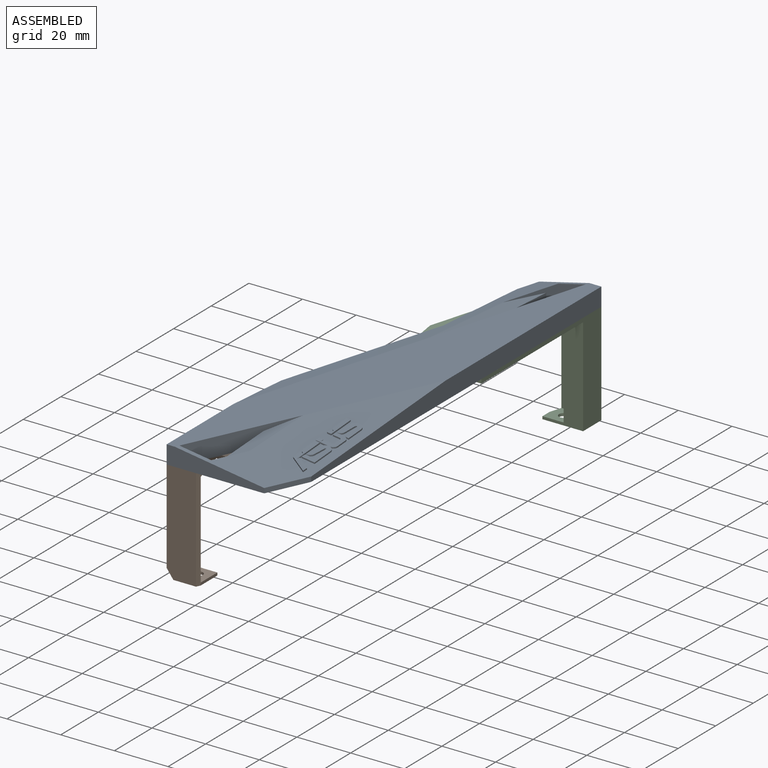
[diagram: assembled view]
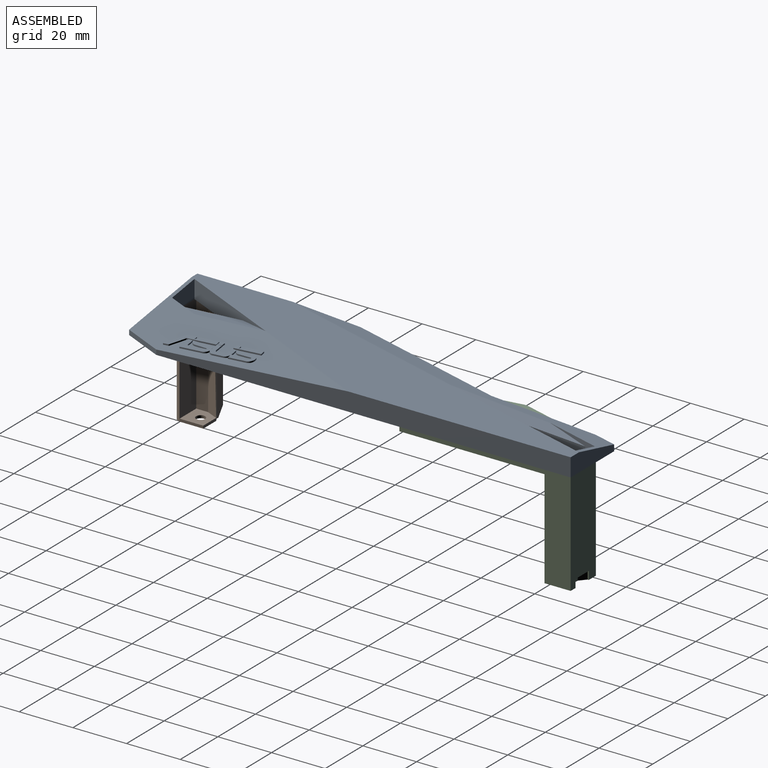
[diagram: assembled view, second angle]
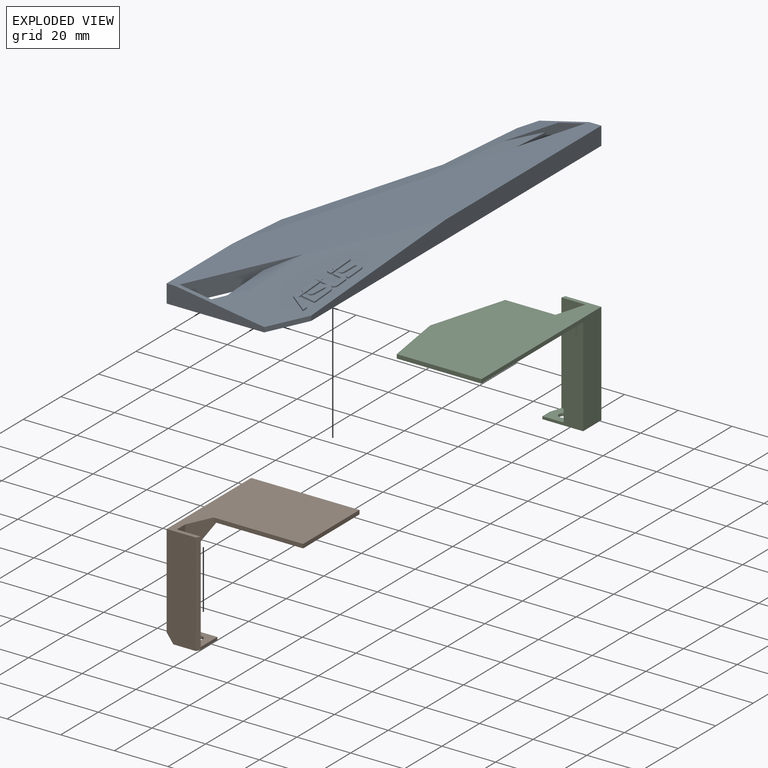
[diagram: exploded view]
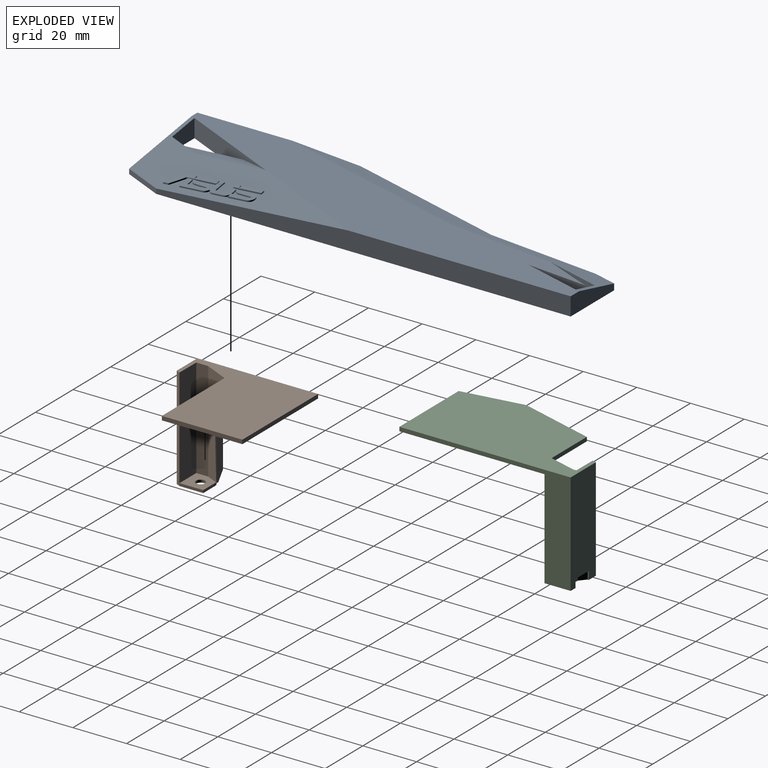
[diagram: exploded view, second angle]
ASSEMBLY  parts=3 mates=2
PART A: 165 faces, bbox 43.7x169.8x43.4 mm
  f0: plane 58.43x16.96mm, normal (0.96,-0.28,0), area 299.6mm2, adj f1,f2,f4,f5,f13
  f1: plane 35x4.8mm, normal (-1,0,0), area 129.9mm2, adj f0,f2,f3,f5
  f2: plane 53.91x5.49mm, normal (-0.15,-0.06,0.99), area 181.1mm2, adj f0,f1,f3,f6
  f3: plane 20.78x6.03mm, normal (-0.96,0.28,0), area 35.1mm2, adj f1,f2,f4,f5,f6
  f4: plane 10.16x6.8mm, normal (0,1,0), area 56.7mm2, adj f0,f3,f5,f6
  f5: plane 169.4x43.34mm, normal (0,0,-1), area 5751mm2, adj f0,f1,f3,f4,f7,f8,f9,f10
  f6: plane 134.04x38.92mm, normal (0.23,-0.07,0.97), area 838.2mm2, adj f2,f3,f4,f13,f14,f15,f17,f18
  f7: plane 39.5x18.42mm, normal (-0.91,0.42,0), area 215.8mm2, adj f5,f8,f9,f11,f13
  f8: plane 25.47x4.8mm, normal (1,0,0), area 103mm2, adj f5,f7,f10,f11
  f9: plane 11.88x6.8mm, normal (0,-1,0), area 70.2mm2, adj f5,f7,f10,f12
  f10: plane 12.27x5.72mm, normal (0.91,-0.42,0), area 18.3mm2, adj f5,f8,f9,f11,f12
  f11: plane 38.06x5.87mm, normal (0.21,0.06,0.98), area 142.5mm2, adj f7,f8,f10,f12
  f12: plane 86.88x40.7mm, normal (-0.15,0.07,0.99), area 1265.1mm2, adj f9,f10,f11,f13,f20,f21,f22,f23
  f13: plane 169.4x43.34mm, normal (0,0,1), area 2988.2mm2, adj f0,f6,f7,f12,f14,f19,f20,f22
  f14: plane 74.78x6.8mm, normal (1,0,0), area 440.3mm2, adj f5,f6,f13,f15,f16,f22
  f15: plane 74.93x17.71mm, normal (0.58,-0.17,0.79), area 310.5mm2, adj f6,f14,f16,f17
  f16: plane 61.01x17.71mm, normal (0.96,-0.28,0), area 129.8mm2, adj f5,f14,f15,f17
  f17: plane 39.02x5.02mm, normal (1,0,0), area 93.4mm2, adj f5,f6,f15,f16,f18
  f18: plane 8.5x2.47mm, normal (0.96,-0.28,0), area 20.2mm2, adj f5,f6,f17,f19
  f19: plane 23.16x6.8mm, normal (0,-1,0), area 115.2mm2, adj f5,f6,f13,f18,f20
  f20: plane 154.39x6.8mm, normal (-1,0,0), area 871mm2, adj f5,f12,f13,f19,f21
  f21: plane 15.01x7mm, normal (-0.91,0.42,0), area 29.8mm2, adj f5,f12,f20,f22
  f22: plane 36.34x6.8mm, normal (0,1,0), area 163.7mm2, adj f5,f12,f13,f14,f21
  f23: plane 1.19x0.57mm, normal (0.99,-0.12,0), area 0.6mm2, adj f12,f24,f52,f53
  f24: extruded ~0.51x0.03mm, area 0mm2, adj f12,f23,f25,f53
  f25: plane 4.94x3.13mm, normal (-0.54,-0.84,0), area 3mm2, adj f12,f24,f26,f53
  f26: extruded ~0.51x0.02mm, area 0mm2, adj f12,f25,f27,f53
  f27: plane 2.06x0.65mm, normal (-1,0,0), area 1mm2, adj f12,f26,f28,f53
  f28: cylinder r=0.02mm len=0.51mm, axis (0,0,1), area 0mm2, adj f12,f27,f29,f53
  f29: plane 6.46x4.09mm, normal (0.54,0.84,0), area 3.9mm2, adj f12,f28,f30,f53
  f30: plane 0.52x0.09mm, normal (0.6,0.8,0), area 0.1mm2, adj f12,f29,f31,f53
  f31: plane 0.52x0.08mm, normal (0.7,0.72,0), area 0.1mm2, adj f12,f30,f32,f53
  f32: plane 0.52x0.09mm, normal (0.82,0.58,0), area 0.1mm2, adj f12,f31,f33,f53
  f33: plane 0.52x0.1mm, normal (0.87,0.49,0), area 0.1mm2, adj f12,f32,f34,f53
  f34: plane 0.52x0.1mm, normal (0.94,0.34,0), area 0.1mm2, adj f12,f33,f35,f53
  f35: plane 0.52x0.11mm, normal (0.98,0.22,0), area 0.1mm2, adj f12,f34,f36,f53
  f36: plane 0.52x0.11mm, normal (1,0.07,0), area 0.1mm2, adj f12,f35,f37,f53
  f37: plane 3.11x0.72mm, normal (1,0,0), area 1.6mm2, adj f12,f36,f38,f53
  f38: cylinder r=0.02mm len=0.51mm, axis (0,0,1), area 0mm2, adj f12,f37,f39,f53
  f39: plane 1.28x0.7mm, normal (0,-1,0), area 0.6mm2, adj f12,f38,f40,f53
  f40: plane 0.51x0.11mm, normal (1,0,0), area 0.1mm2, adj f12,f39,f41,f53
  f41: extruded ~0.99x0.78mm, area 0.7mm2, adj f12,f40,f42,f53
  f42: plane 0.53x0.16mm, normal (0.86,0.52,0), area 0.1mm2, adj f12,f41,f43,f53
  f43: plane 0.53x0.17mm, normal (0.91,0.42,0), area 0.1mm2, adj f12,f42,f44,f53
  f44: plane 0.53x0.18mm, normal (0.95,0.31,0), area 0.1mm2, adj f12,f43,f45,f53
  f45: plane 0.53x0.18mm, normal (0.97,0.24,0), area 0.1mm2, adj f12,f44,f46,f53
  f46: plane 0.52x0.19mm, normal (0.99,0.15,0), area 0.1mm2, adj f12,f45,f47,f53
  f47: plane 0.52x0.18mm, normal (1,0.04,0), area 0.1mm2, adj f12,f46,f48,f53
  f48: plane 6.39x0.95mm, normal (1,0,0), area 3.2mm2, adj f12,f47,f49,f53
  f49: cylinder r=0.02mm len=0.51mm, axis (0,0,1), area 0mm2, adj f12,f48,f50,f53
  f50: plane 1.68x0.76mm, normal (0,-1,0), area 0.8mm2, adj f12,f49,f51,f53
  f51: extruded ~0.51x0.03mm, area 0mm2, adj f12,f50,f52,f53
  f52: plane 12.18x1.36mm, normal (-1,0,0), area 6.2mm2, adj f12,f23,f51,f53
  f53: plane 16.24x6.86mm, normal (-0.15,0.07,0.99), area 31.9mm2, adj f23,f24,f25,f26,f27,f28,f29,f30
  f54: plane 10.4x1.57mm, normal (-0.15,0.07,0.99), area 15.7mm2, adj f55,f56,f57,f58,f59,f60,f61,f62
  f55: extruded ~0.51x0.03mm, area 0mm2, adj f12,f54,f56,f72
  f56: plane 1.31x0.7mm, normal (0,-1,0), area 0.7mm2, adj f12,f54,f55,f57
  f57: extruded ~1.01x0.85mm, area 0.7mm2, adj f12,f54,f56,f58
  f58: plane 0.53x0.16mm, normal (0.86,0.5,0), area 0.1mm2, adj f12,f54,f57,f59
  f59: plane 0.53x0.17mm, normal (0.91,0.41,0), area 0.1mm2, adj f12,f54,f58,f60
  f60: plane 0.53x0.18mm, normal (0.95,0.31,0), area 0.1mm2, adj f12,f54,f59,f61
  f61: plane 0.53x0.18mm, normal (0.96,0.27,0), area 0.1mm2, adj f12,f54,f60,f62
  f62: plane 0.52x0.18mm, normal (0.99,0.15,0), area 0.1mm2, adj f12,f54,f61,f63
  f63: plane 0.52x0.18mm, normal (1,0.07,0), area 0.1mm2, adj f12,f54,f62,f64
  f64: plane 6.7x0.98mm, normal (1,0,0), area 3.4mm2, adj f12,f54,f63,f65
  f65: extruded ~0.51x0.02mm, area 0mm2, adj f12,f54,f64,f66
  f66: plane 1.52x0.74mm, normal (0,-1,0), area 0.8mm2, adj f12,f54,f65,f67
  f67: cylinder r=0.02mm len=0.51mm, axis (0,0,1), area 0mm2, adj f12,f54,f66,f68
  f68: plane 10.34x1.23mm, normal (-1,0,0), area 5.2mm2, adj f12,f54,f67,f69
  f69: extruded ~0.51x0.02mm, area 0mm2, adj f12,f54,f68,f70
  f70: plane 1.52x0.73mm, normal (0,1,0), area 0.8mm2, adj f12,f54,f69,f71
  f71: extruded ~0.51x0.02mm, area 0mm2, adj f12,f54,f70,f72
  f72: plane 1.72x0.63mm, normal (1,0,0), area 0.9mm2, adj f12,f54,f55,f71
  f73: plane 3.12x0.73mm, normal (1,0,0), area 1.6mm2, adj f12,f74,f162,f163
  f74: extruded ~0.63x0.56mm, area 0.4mm2, adj f12,f73,f75,f163
  f75: plane 2.58x0.89mm, normal (0,1,0), area 1.3mm2, adj f12,f74,f76,f163
  f76: cylinder r=0.05mm len=0.51mm, axis (0,0,-1), area 0mm2, adj f12,f75,f77,f163
  f77: plane 1.72x0.61mm, normal (1,-0.08,0), area 0.9mm2, adj f12,f76,f78,f163
  f78: cylinder r=0.03mm len=0.51mm, axis (0,0,-1), area 0mm2, adj f12,f77,f79,f163
  f79: plane 2.84x0.93mm, normal (0,-1,0), area 1.4mm2, adj f12,f78,f80,f163
  f80: plane 6.8x0.98mm, normal (1,0,0), area 3.4mm2, adj f12,f79,f81,f163
  f81: extruded ~0.6x0.6mm, area 0.5mm2, adj f12,f80,f82,f163
  f82: plane 5.07x0.8mm, normal (-1,0.08,0), area 2.6mm2, adj f12,f81,f83,f163
  f83: plane 0.51x0.18mm, normal (-0.98,0.18,0), area 0.1mm2, adj f12,f82,f84,f163
  f84: plane 0.51x0.17mm, normal (-0.97,0.26,0), area 0.1mm2, adj f12,f83,f85,f163
  f85: plane 0.51x0.17mm, normal (-0.94,0.34,0), area 0.1mm2, adj f12,f84,f86,f163
  f86: plane 0.51x0.16mm, normal (-0.9,0.43,0), area 0.1mm2, adj f12,f85,f87,f163
  f87: plane 0.51x0.15mm, normal (-0.86,0.51,0), area 0.1mm2, adj f12,f86,f88,f163
  f88: plane 0.51x0.15mm, normal (-0.81,0.58,0), area 0.1mm2, adj f12,f87,f89,f163
  f89: plane 0.52x0.13mm, normal (-0.74,0.67,0), area 0.1mm2, adj f12,f88,f90,f163
  f90: extruded ~1.31x0.66mm, area 0.7mm2, adj f12,f89,f91,f163
  f91: plane 6.78x0.9mm, normal (1,-0.08,0), area 3.4mm2, adj f12,f90,f92,f163
  f92: plane 0.52x0.18mm, normal (0.99,-0.12,0), area 0.1mm2, adj f12,f91,f93,f163
  f93: plane 0.51x0.17mm, normal (0.98,-0.21,0), area 0.1mm2, adj f12,f92,f94,f163
  f94: plane 0.51x0.17mm, normal (0.96,-0.29,0), area 0.1mm2, adj f12,f93,f95,f163
  f95: plane 0.51x0.16mm, normal (0.93,-0.37,0), area 0.1mm2, adj f12,f94,f96,f163
  f96: extruded ~2.01x1.17mm, area 1.3mm2, adj f12,f95,f97,f163
  f97: extruded ~1.37x0.76mm, area 0.8mm2, adj f12,f96,f98,f163
  f98: extruded ~0.78x0.62mm, area 0.4mm2, adj f12,f97,f99,f163
  f99: plane 0.53x0.17mm, normal (-0.97,-0.24,0), area 0.1mm2, adj f12,f98,f100,f163
  f100: plane 0.52x0.18mm, normal (-0.99,-0.13,0), area 0.1mm2, adj f12,f99,f101,f163
  f101: plane 0.52x0.17mm, normal (-1,-0.03,0), area 0.1mm2, adj f12,f100,f102,f163
  f102: plane 6.79x0.98mm, normal (-1,0,0), area 3.4mm2, adj f12,f101,f103,f163
  f103: cylinder r=0.07mm len=0.51mm, axis (0,0,-1), area 0mm2, adj f12,f102,f104,f163
  f104: plane 1.24x0.69mm, normal (0,1,0), area 0.6mm2, adj f12,f103,f105,f163
  f105: extruded ~0.92x0.69mm, area 0.6mm2, adj f12,f104,f106,f163
  f106: plane 0.53x0.14mm, normal (-0.84,-0.54,0), area 0.1mm2, adj f12,f105,f107,f163
  f107: plane 0.53x0.14mm, normal (-0.88,-0.47,0), area 0.1mm2, adj f12,f106,f108,f163
  f108: plane 0.53x0.16mm, normal (-0.92,-0.38,0), area 0.1mm2, adj f12,f107,f109,f163
  f109: plane 0.53x0.15mm, normal (-0.94,-0.33,0), area 0.1mm2, adj f12,f108,f110,f163
  f110: plane 0.52x0.17mm, normal (-0.98,-0.22,0), area 0.1mm2, adj f12,f109,f111,f163
  f111: plane 0.52x0.16mm, normal (-0.99,-0.14,0), area 0.1mm2, adj f12,f110,f112,f163
  f112: plane 0.52x0.17mm, normal (-1,-0.04,0), area 0.1mm2, adj f12,f111,f113,f163
  f113: plane 4.06x0.79mm, normal (-1,0,0), area 2.1mm2, adj f12,f112,f114,f163
  f114: extruded ~1.83x1.52mm, area 1.3mm2, adj f12,f113,f115,f163
  f115: extruded ~1.2x0.81mm, area 0.7mm2, adj f12,f114,f116,f163
  f116: plane 0.53x0.16mm, normal (-0.85,-0.52,0), area 0.1mm2, adj f12,f115,f117,f163
  f117: plane 0.53x0.16mm, normal (-0.91,-0.42,0), area 0.1mm2, adj f12,f116,f118,f163
  f118: plane 0.53x0.17mm, normal (-0.93,-0.37,0), area 0.1mm2, adj f12,f117,f119,f163
  f119: plane 0.53x0.18mm, normal (-0.97,-0.25,0), area 0.1mm2, adj f12,f118,f120,f163
  f120: plane 0.52x0.18mm, normal (-0.98,-0.18,0), area 0.1mm2, adj f12,f119,f121,f163
  f121: plane 0.52x0.18mm, normal (-1,-0.05,0), area 0.1mm2, adj f12,f120,f122,f163
  f122: plane 0.52x0.18mm, normal (-1,0.02,0), area 0.1mm2, adj f12,f121,f123,f163
  f123: plane 8.42x1.1mm, normal (-1,0,0), area 4.3mm2, adj f12,f122,f124,f163
  f124: cylinder r=0.04mm len=0.51mm, axis (0,0,-1), area 0mm2, adj f12,f123,f125,f163
  f125: plane 4.81x1.23mm, normal (0,1,0), area 2.4mm2, adj f12,f124,f126,f163
  f126: extruded ~0.51x0.02mm, area 0mm2, adj f12,f125,f127,f163
  f127: plane 1.75x0.6mm, normal (0.99,-0.11,0), area 0.9mm2, adj f12,f126,f128,f163
  f128: cylinder r=0.03mm len=0.51mm, axis (0,0,-1), area 0mm2, adj f12,f127,f129,f163
  f129: plane 2.91x0.94mm, normal (0,-1,0), area 1.5mm2, adj f12,f128,f130,f163
  f130: plane 6.78x0.98mm, normal (1,0,0), area 3.4mm2, adj f12,f129,f131,f163
  f131: extruded ~0.56x0.22mm, area 0.2mm2, adj f12,f130,f132,f163
  f132: extruded ~0.53x0.21mm, area 0.2mm2, adj f12,f131,f133,f163
  f133: plane 4.94x0.81mm, normal (-0.99,0.12,0), area 2.5mm2, adj f12,f132,f134,f163
  f134: plane 0.51x0.19mm, normal (-0.97,0.23,0), area 0.1mm2, adj f12,f133,f135,f163
  f135: plane 0.51x0.19mm, normal (-0.96,0.29,0), area 0.1mm2, adj f12,f134,f136,f163
  f136: plane 0.51x0.18mm, normal (-0.9,0.43,0), area 0.1mm2, adj f12,f135,f137,f163
  f137: plane 0.51x0.17mm, normal (-0.88,0.48,0), area 0.1mm2, adj f12,f136,f138,f163
  f138: plane 0.51x0.16mm, normal (-0.82,0.57,0), area 0.1mm2, adj f12,f137,f139,f163
  f139: plane 0.51x0.15mm, normal (-0.78,0.63,0), area 0.1mm2, adj f12,f138,f140,f163
  f140: plane 0.52x0.14mm, normal (-0.71,0.71,0), area 0.1mm2, adj f12,f139,f141,f163
  f141: extruded ~1.25x0.66mm, area 0.7mm2, adj f12,f140,f142,f163
  f142: plane 6.65x0.86mm, normal (0.99,-0.12,0), area 3.4mm2, adj f12,f141,f143,f163
  f143: plane 0.52x0.18mm, normal (0.99,-0.13,0), area 0.1mm2, adj f12,f142,f144,f163
  f144: plane 0.51x0.17mm, normal (0.98,-0.22,0), area 0.1mm2, adj f12,f143,f145,f163
  f145: plane 0.51x0.17mm, normal (0.95,-0.32,0), area 0.1mm2, adj f12,f144,f146,f163
  f146: plane 0.51x0.17mm, normal (0.93,-0.38,0), area 0.1mm2, adj f12,f145,f147,f163
  f147: plane 0.51x0.16mm, normal (0.9,-0.44,0), area 0.1mm2, adj f12,f146,f148,f163
  f148: plane 0.51x0.14mm, normal (0.83,-0.56,0), area 0.1mm2, adj f12,f147,f149,f163
  f149: plane 0.51x0.15mm, normal (0.8,-0.6,0), area 0.1mm2, adj f12,f148,f150,f163
  f150: extruded ~0.94x0.63mm, area 0.6mm2, adj f12,f149,f151,f163
  f151: plane 4.38x1.16mm, normal (0,1,0), area 2.2mm2, adj f12,f150,f152,f163
  f152: cylinder r=0.03mm len=0.51mm, axis (0,0,-1), area 0mm2, adj f12,f151,f153,f163
  f153: plane 1.72x0.63mm, normal (1,0,0), area 0.9mm2, adj f12,f152,f154,f163
  f154: bspline ~43.07x0.03mm, area 0mm2, adj f12,f153,f155,f163
  f155: plane 1.52x0.74mm, normal (0,-1,0), area 0.8mm2, adj f12,f154,f163,f164
  f156: extruded ~0.51x0.02mm, area 0mm2, adj f12,f157,f163,f164
  f157: plane 1.46x0.61mm, normal (-1,0,0), area 0.7mm2, adj f12,f156,f158,f163
  f158: plane 0.51x0.05mm, normal (0,-1,0), area 0mm2, adj f12,f157,f159,f163
  f159: plane 1.46x0.59mm, normal (1,-0.08,0), area 0.7mm2, adj f12,f158,f160,f163
  f160: cylinder r=0.03mm len=0.51mm, axis (0,0,-1), area 0mm2, adj f12,f159,f161,f163
  f161: plane 2.95x0.95mm, normal (0,-1,0), area 1.5mm2, adj f12,f160,f162,f163
  f162: extruded ~0.57x0.56mm, area 0.4mm2, adj f12,f73,f161,f163
  f163: plane 27.29x7.22mm, normal (-0.15,0.07,0.99), area 91.7mm2, adj f73,f74,f75,f76,f77,f78,f79,f80
  f164: cylinder r=0.07mm len=0.51mm, axis (0,0.01,-1), area 0mm2, adj f155,f156
PART B: 24 faces, bbox 38.2x45x40.3 mm
  f0: plane 33.35x1.5mm, normal (0,1,0), area 50mm2, adj f1,f8,f13,f20
  f1: plane 7.5x6mm, normal (0,0.42,0.91), area 27.6mm2, adj f0,f3,f13,f19,f20
  f2: plane 4.82x0.8mm, normal (-1,0,0), area 3.7mm2, adj f3,f18,f19,f21,f23
  f3: plane 37.2x4.42mm, normal (0,0.42,0.91), area 168.5mm2, adj f1,f2,f12,f16,f20,f21
  f4: plane 10.35x9.15mm, normal (-1,0,0), area 83.8mm2, adj f5,f6,f7,f9,f10,f11,f17,f22
  f5: plane 6.83x1mm, normal (0,-1,0), area 6.8mm2, adj f4,f9,f12,f22
  f6: plane 9.55x3.38mm, normal (-0.6,0,-0.8), area 40.1mm2, adj f4,f17,f18,f23
  f7: plane 38.2x1.5mm, normal (0,0.42,0.91), area 63.2mm2, adj f4,f9,f15,f17,f20
  f8: plane 29.99x1.5mm, normal (0,0,1), area 45mm2, adj f0,f13,f14,f20
  f9: plane 8.85x1mm, normal (0,0,1), area 8.8mm2, adj f4,f5,f7,f12
  f10: cylinder r=1.7mm len=3.4mm, axis (1,0,0), area 5.3mm2, adj f4,f11,f12
  f11: cylinder r=1.7mm len=3.4mm, axis (1,0,0), area 5.3mm2, adj f4,f10,f12
  f12: plane 8.89x8.85mm, normal (1,0,0), area 65.1mm2, adj f3,f5,f9,f10,f11,f15,f16
  f13: plane 40.34x29.99mm, normal (-1,0,0), area 1199.9mm2, adj f0,f1,f8,f14,f18,f19
  f14: plane 40.34x1.5mm, normal (0,-1,0), area 60.5mm2, adj f8,f13,f18,f20
  f15: plane 37.2x8.89mm, normal (0,-1,0), area 330.9mm2, adj f7,f12,f16,f20
  f16: plane 37.2x4.43mm, normal (0,0,1), area 164.7mm2, adj f3,f12,f15,f20
  f17: plane 38.2x10.95mm, normal (0,1,0), area 414mm2, adj f4,f6,f7,f18,f20
  f18: plane 45x34.83mm, normal (0,0,-1), area 408.6mm2, adj f2,f6,f13,f14,f17,f19,f20,f23
  f19: plane 7.61x6mm, normal (-0.71,-0.71,0), area 52.7mm2, adj f1,f2,f13,f18
  f20: plane 45x40.34mm, normal (1,0,0), area 1283mm2, adj f0,f1,f3,f7,f8,f14,f15,f16
  f21: plane 29.7x1.48mm, normal (0.03,-1,0), area 16.5mm2, adj f2,f3,f22
  f22: plane 30.7x1.48mm, normal (0,-0.88,-0.47), area 26.7mm2, adj f4,f5,f21,f23
  f23: plane 30.7x3.33mm, normal (0,-1,0), area 98.1mm2, adj f2,f4,f6,f18,f22
PART C: 26 faces, bbox 35.1x38.2x63.8 mm
  f0: plane 18.74x1.5mm, normal (0,0,-1), area 28.1mm2, adj f1,f4,f24,f25
  f1: plane 3.06x1.5mm, normal (0.96,0,-0.28), area 4.8mm2, adj f0,f2,f4,f24
  f2: plane 37.2x8.22mm, normal (0.96,0,-0.28), area 260.4mm2, adj f1,f11,f14,f22,f24
  f3: plane 22.73x3.52mm, normal (0.99,0,0.15), area 34.5mm2, adj f4,f23,f24,f25
  f4: plane 54.09x35.08mm, normal (0,1,0), area 1657.6mm2, adj f0,f1,f3,f11,f20,f23,f25
  f5: plane 2.33x2.01mm, normal (0,1,0), area 2.3mm2, adj f9,f15
  f6: plane 3.05x2.33mm, normal (-0.65,0,-0.76), area 9.4mm2, adj f7,f10,f15,f16
  f7: plane 3.05x2.45mm, normal (0,0,-1), area 7.5mm2, adj f6,f9,f10,f15
  f8: plane 3.05x0.48mm, normal (1,0,0), area 1.5mm2, adj f9,f10,f13,f15
  f9: plane 3.05x2.33mm, normal (0.65,0,-0.76), area 9.4mm2, adj f5,f7,f8,f10
  f10: plane 7.11x2.48mm, normal (0,1,0), area 13mm2, adj f6,f7,f8,f9,f13,f16
  f11: plane 36.7x15.16mm, normal (0,0,1), area 273.8mm2, adj f2,f4,f14,f15,f17,f20
  f12: plane 37.2x9mm, normal (0,0,1), area 254.2mm2, adj f14,f21,f22,f24
  f13: plane 38.2x13.42mm, normal (0,0,-1), area 491.1mm2, adj f8,f10,f15,f16,f20,f21,f24
  f14: plane 9.43x8.22mm, normal (0,-1,0), area 56.4mm2, adj f2,f11,f12,f17,f18,f19,f21,f22
  f15: plane 15.16x9.72mm, normal (0,1,0), area 117.7mm2, adj f5,f6,f7,f8,f11,f13,f16,f17
  f16: plane 3.05x0.48mm, normal (-1,0,0), area 1.5mm2, adj f6,f10,f13,f15
  f17: plane 3.74x1mm, normal (1,0,0), area 3.7mm2, adj f11,f14,f15,f21
  f18: cylinder r=1.7mm len=3.4mm, axis (0,-1,0), area 5.3mm2, adj f14,f15,f19
  f19: cylinder r=1.7mm len=3.4mm, axis (0,-1,0), area 5.3mm2, adj f14,f15,f18
  f20: plane 63.81x38.2mm, normal (-1,0,0), area 452.2mm2, adj f4,f11,f13,f15,f23,f24
  f21: plane 38.2x5.98mm, normal (0.96,0,-0.28), area 64.3mm2, adj f12,f13,f14,f15,f17,f24
  f22: plane 37.2x4.33mm, normal (0.65,-0.08,0.76), area 85.3mm2, adj f2,f12,f14
  f23: plane 31.56x1.5mm, normal (0,0,1), area 47.3mm2, adj f3,f4,f20,f24
  f24: plane 63.81x35.08mm, normal (0,-1,0), area 1727.8mm2, adj f0,f1,f2,f3,f12,f13,f20,f21
  f25: plane 28.3x8.22mm, normal (0.96,0,-0.28), area 44.2mm2, adj f0,f3,f4,f24
PLACE A rot(axis=(0,0,-1),180deg) t=(-56.02,-91.56,-17.65)mm
PLACE B rot(axis=(-0.71,0,-0.71),180deg) t=(-68.44,-46.56,-30.07)mm
PLACE C rot(axis=(0,0.71,-0.71),180deg) t=(-26.1,77.84,-55.85)mm
MATE fastened B.f20 <-> A.f5  axis (0,0,1) through (-68.44,-91.56,-17.65)mm
MATE fastened C.f24 <-> A.f5  axis (0,0,1) through (-25.1,77.84,-17.65)mm
